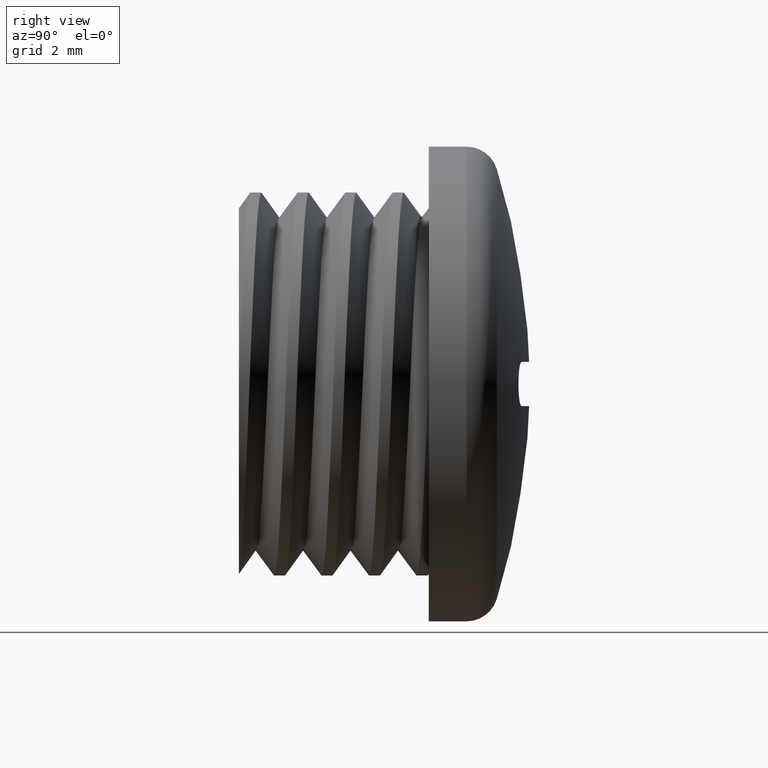
[diagram: clean part render]
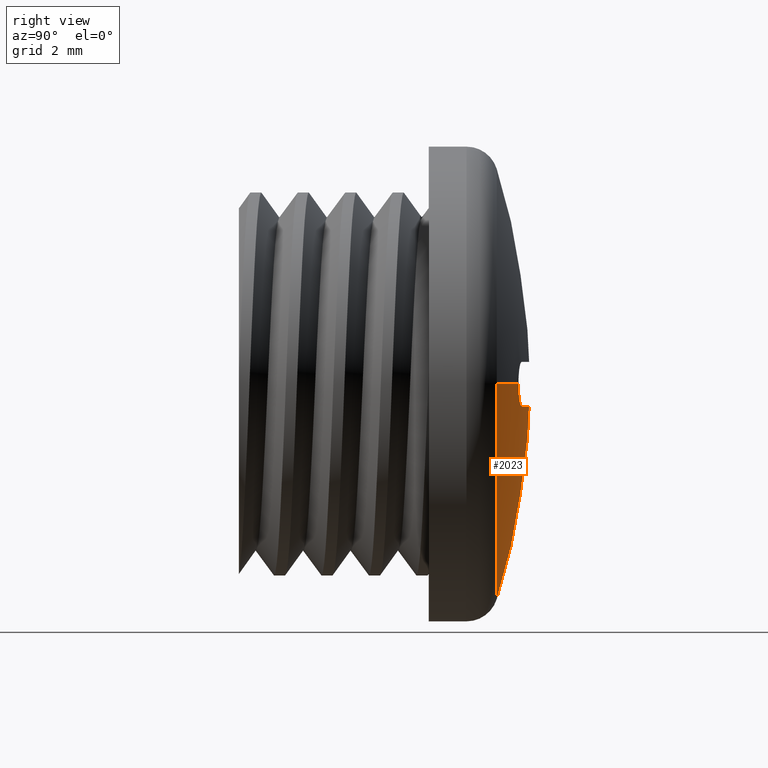
[diagram: same view with one face highlighted and labeled with its STEP entity id]
A machine part, right view. The second image highlights one B-rep face of the part: STEP entity #2023.
In plain terms, the highlighted spherical surface has radius 22.8486 mm.
Its self-contained STEP definition (entity closure, byte-faithful):
#861 = DIRECTION ( 'NONE',  ( 1.000000000000000000, -7.140062133906838300E-015, 0.0000000000000000000 ) ) ;
#862 = CARTESIAN_POINT ( 'NONE',  ( 3.458315376702025800, 9.498200300820604600, -0.6820398635016812200 ) ) ;
#867 = DIRECTION ( 'NONE',  ( -0.0000000000000000000, -0.0000000000000000000, -1.000000000000000000 ) ) ;
#868 = CARTESIAN_POINT ( 'NONE',  ( 3.276161009388451000, 9.524616053111250500, -0.6999999999999999600 ) ) ;
#873 = DIRECTION ( 'NONE',  ( 0.0000000000000000000, 0.0000000000000000000, -1.000000000000000000 ) ) ;
#874 = CARTESIAN_POINT ( 'NONE',  ( 3.704900623805694500, 9.462385659813200800, -0.5608225818286891600 ) ) ;
#877 = CARTESIAN_POINT ( 'NONE',  ( 3.899196449510865300, 9.434132518944910100, -0.3676755925948374500 ) ) ;
#889 = DIRECTION ( 'NONE',  ( -0.0000000000000000000, -1.000000000000000000, 0.0000000000000000000 ) ) ;
#890 = CARTESIAN_POINT ( 'NONE',  ( 3.627376152914660400, 9.473652574560246000, -0.6123777526124414300 ) ) ;
#892 = CARTESIAN_POINT ( 'NONE',  ( 3.469446951953614200E-015, -13.07707256964489400, -0.6999999999999999600 ) ) ;
#898 = CARTESIAN_POINT ( 'NONE',  ( 3.976161009388450700, 9.422920834507039000, 4.393527685633381800E-031 ) ) ;
#901 = CARTESIAN_POINT ( 'NONE',  ( 3.368118649070830400, 9.511286605092069000, -0.6999999999999998400 ) ) ;
#907 = CARTESIAN_POINT ( 'NONE',  ( 3.976161009388451600, 9.422920834507040800, -0.1858928656285584700 ) ) ;
#910 = CARTESIAN_POINT ( 'NONE',  ( -4.592425496802575900E-016, 8.736994719374898500, 0.0000000000000000000 ) ) ;
#1038 = CARTESIAN_POINT ( 'NONE',  ( -3.882328282698233000, 9.435348180695040600, -0.4317579831050296100 ) ) ;
#1044 = CARTESIAN_POINT ( 'NONE',  ( -3.688322938851663400, 9.463979898047851300, -0.6248619310510310500 ) ) ;
#1053 = CARTESIAN_POINT ( 'NONE',  ( -4.023838990611549700, 9.414443149334470500, -0.09294379522490396600 ) ) ;
#1064 = CARTESIAN_POINT ( 'NONE',  ( -3.507692404990426100, 9.490607575216053200, -0.7000000000000005100 ) ) ;
#1074 = CARTESIAN_POINT ( 'NONE',  ( -4.005416067926088200, 9.417166166204129500, -0.1841723266725426000 ) ) ;
#1076 = CARTESIAN_POINT ( 'NONE',  ( -4.023838990611550600, 9.414443149334470500, -1.685188701338831400E-031 ) ) ;
#1077 = CARTESIAN_POINT ( 'NONE',  ( -3.323838990611550400, 9.517653671758251800, -0.6999999999999999600 ) ) ;
#1083 = CARTESIAN_POINT ( 'NONE',  ( -3.934665598448782400, 9.427618111265967800, -0.3540587710969258500 ) ) ;
#1108 = CARTESIAN_POINT ( 'NONE',  ( -4.592425496802575900E-016, 8.736994719374898500, 0.0000000000000000000 ) ) ;
#1116 = DIRECTION ( 'NONE',  ( 0.0000000000000000000, 0.0000000000000000000, -1.000000000000000000 ) ) ;
#1127 = DIRECTION ( 'NONE',  ( -0.0000000000000000000, -1.000000000000000000, 0.0000000000000000000 ) ) ;
#1193 = CARTESIAN_POINT ( 'NONE',  ( 3.469446951953614200E-015, -13.07707256964489400, 0.0000000000000000000 ) ) ;
#1205 = DIRECTION ( 'NONE',  ( -0.0000000000000000000, 0.0000000000000000000, 1.000000000000000000 ) ) ;
#1223 = DIRECTION ( 'NONE',  ( 1.000000000000000000, 0.0000000000000000000, 0.0000000000000000000 ) ) ;
#1296 = DIRECTION ( 'NONE',  ( -0.0000000000000000000, 0.0000000000000000000, 1.000000000000000000 ) ) ;
#1312 = CARTESIAN_POINT ( 'NONE',  ( 3.469446951953614200E-015, -13.07707256964489400, 0.0000000000000000000 ) ) ;
#1313 = DIRECTION ( 'NONE',  ( 1.000000000000000000, 0.0000000000000000000, 0.0000000000000000000 ) ) ;
#1405 = CARTESIAN_POINT ( 'NONE',  ( 3.469446951953614200E-015, -13.07707256964489400, 0.0000000000000000000 ) ) ;
#1418 = DIRECTION ( 'NONE',  ( 0.0000000000000000000, 1.000000000000000000, 0.0000000000000000000 ) ) ;
#1430 = SPHERICAL_SURFACE ( 'NONE', #2175, 22.84862270596330100 ) ;
#1432 = FACE_OUTER_BOUND ( 'NONE', #1663, .T. ) ;
#1433 = DIRECTION ( 'NONE',  ( 0.0000000000000000000, 0.0000000000000000000, -1.000000000000000000 ) ) ;
#1663 = EDGE_LOOP ( 'NONE', ( #1769, #1675, #1755, #1762, #1694, #1750, #1704 ) ) ;
#1675 = ORIENTED_EDGE ( 'NONE', *, *, #1970, .F. ) ;
#1694 = ORIENTED_EDGE ( 'NONE', *, *, #1960, .T. ) ;
#1704 = ORIENTED_EDGE ( 'NONE', *, *, #1946, .T. ) ;
#1750 = ORIENTED_EDGE ( 'NONE', *, *, #1945, .T. ) ;
#1753 = VERTEX_POINT ( 'NONE', #1846 ) ;
#1755 = ORIENTED_EDGE ( 'NONE', *, *, #1942, .F. ) ;
#1762 = ORIENTED_EDGE ( 'NONE', *, *, #2002, .F. ) ;
#1769 = ORIENTED_EDGE ( 'NONE', *, *, #1986, .F. ) ;
#1779 = VERTEX_POINT ( 'NONE', #1849 ) ;
#1788 = VERTEX_POINT ( 'NONE', #1861 ) ;
#1789 = VERTEX_POINT ( 'NONE', #1851 ) ;
#1820 = VERTEX_POINT ( 'NONE', #1829 ) ;
#1824 = VERTEX_POINT ( 'NONE', #1836 ) ;
#1829 = CARTESIAN_POINT ( 'NONE',  ( -3.323838990611550400, 9.517653671758251800, -0.6999999999999999600 ) ) ;
#1836 = CARTESIAN_POINT ( 'NONE',  ( 3.276161009388451000, 9.524616053111250500, -0.6999999999999999600 ) ) ;
#1842 = VERTEX_POINT ( 'NONE', #1881 ) ;
#1846 = CARTESIAN_POINT ( 'NONE',  ( -4.023838990611550600, 9.414443149334470500, -1.685188701338831400E-031 ) ) ;
#1849 = CARTESIAN_POINT ( 'NONE',  ( 6.797501590259353000, 8.736994719374898500, 0.0000000000000000000 ) ) ;
#1851 = CARTESIAN_POINT ( 'NONE',  ( -4.592425496802575900E-016, 8.736994719374898500, -6.797501590259358300 ) ) ;
#1861 = CARTESIAN_POINT ( 'NONE',  ( -6.797501590259350300, 8.736994719374898500, 0.0000000000000000000 ) ) ;
#1881 = CARTESIAN_POINT ( 'NONE',  ( 3.976161009388450700, 9.422920834507039000, 4.393527685633381800E-031 ) ) ;
#1926 = B_SPLINE_CURVE_WITH_KNOTS ( 'NONE', 3,
 ( #1076, #1053, #1074, #1083, #1038, #1044, #1064, #1077 ),
 .UNSPECIFIED., .F., .F.,
 ( 4, 2, 2, 4 ),
 ( 0.001099432490109795900, 0.001374237803365992800, 0.001649043116622189800, 0.002198653743134584800 ),
 .UNSPECIFIED. ) ;
#1928 = B_SPLINE_CURVE_WITH_KNOTS ( 'NONE', 3,
 ( #868, #901, #862, #890, #874, #877, #907, #898 ),
 .UNSPECIFIED., .F., .F.,
 ( 4, 2, 2, 4 ),
 ( -0.001099458457878638900, -0.0008245938434089791400, -0.0005497292289393193200, 0.0000000000000000000 ),
 .UNSPECIFIED. ) ;
#1942 = EDGE_CURVE ( 'NONE', #1788, #1789, #2098, .T. ) ;
#1945 = EDGE_CURVE ( 'NONE', #1820, #1824, #2101, .T. ) ;
#1946 = EDGE_CURVE ( 'NONE', #1824, #1842, #1928, .T. ) ;
#1960 = EDGE_CURVE ( 'NONE', #1753, #1820, #1926, .T. ) ;
#1970 = EDGE_CURVE ( 'NONE', #1789, #1779, #2139, .T. ) ;
#1986 = EDGE_CURVE ( 'NONE', #1779, #1842, #2110, .T. ) ;
#2002 = EDGE_CURVE ( 'NONE', #1753, #1788, #2183, .T. ) ;
#2023 = ADVANCED_FACE ( 'NONE', ( #1432 ), #1430, .T. ) ;
#2098 = CIRCLE ( 'NONE', #2099, 6.797501590259358300 ) ;
#2099 = AXIS2_PLACEMENT_3D ( 'NONE', #910, #889, #873 ) ;
#2101 = CIRCLE ( 'NONE', #2102, 22.83789744174059400 ) ;
#2102 = AXIS2_PLACEMENT_3D ( 'NONE', #892, #867, #861 ) ;
#2110 = CIRCLE ( 'NONE', #2119, 22.84862270596330100 ) ;
#2119 = AXIS2_PLACEMENT_3D ( 'NONE', #1193, #1205, #1223 ) ;
#2131 = AXIS2_PLACEMENT_3D ( 'NONE', #1108, #1127, #1116 ) ;
#2139 = CIRCLE ( 'NONE', #2131, 6.797501590259358300 ) ;
#2172 = AXIS2_PLACEMENT_3D ( 'NONE', #1312, #1296, #1313 ) ;
#2175 = AXIS2_PLACEMENT_3D ( 'NONE', #1405, #1433, #1418 ) ;
#2183 = CIRCLE ( 'NONE', #2172, 22.84862270596330100 ) ;